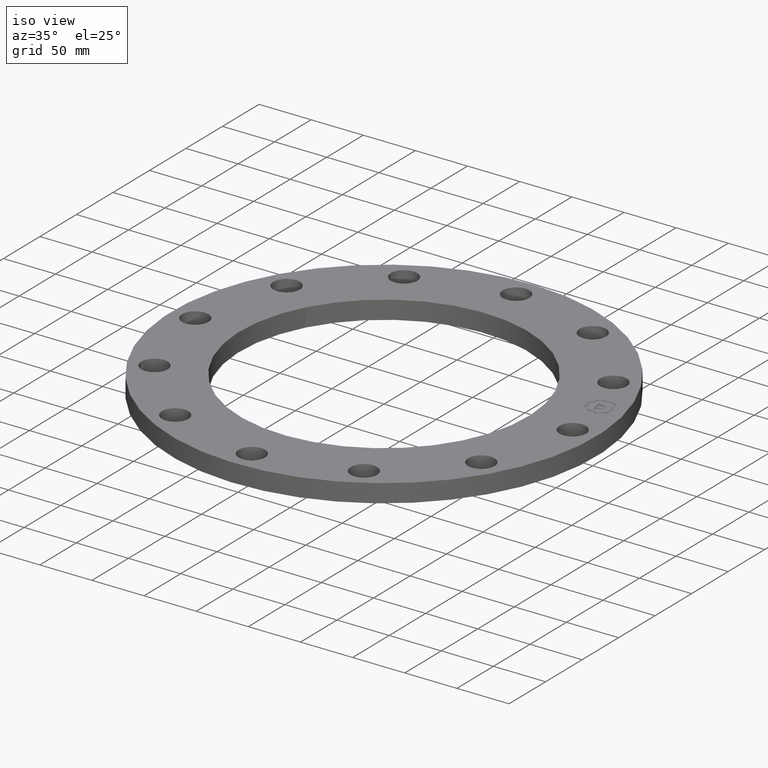
[diagram: clean part render]
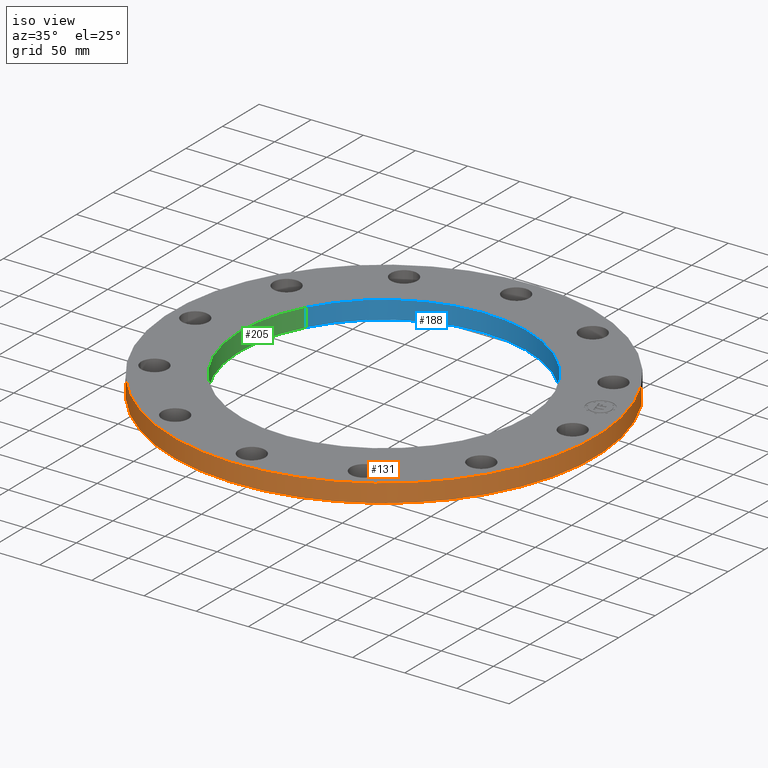
[diagram: same view with three faces highlighted in distinct colors, each labeled with its STEP entity id]
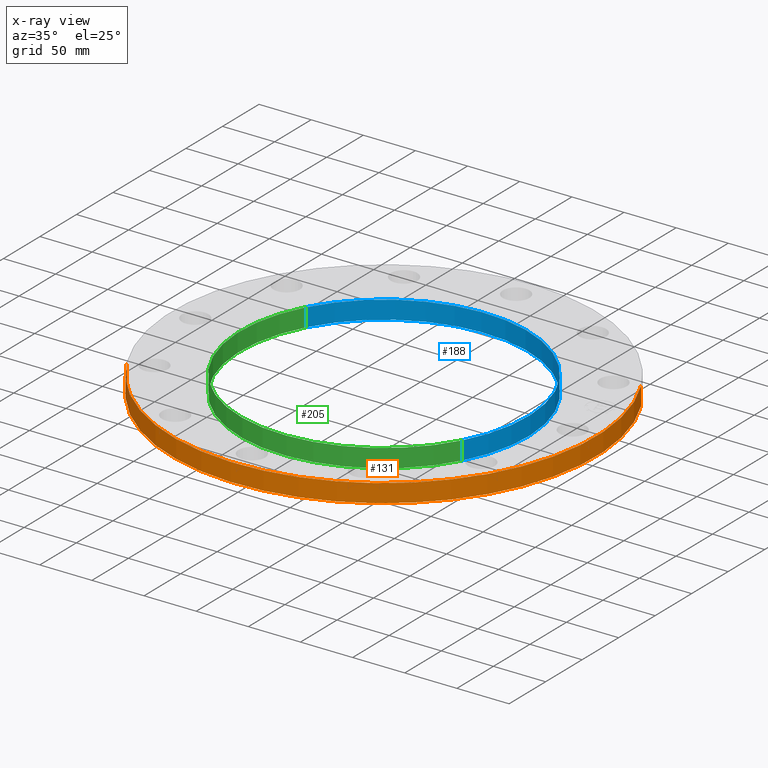
[diagram: x-ray of the same camera — body ghosted, the three highlighted faces saturated]
A machine part, iso view with three faces highlighted in distinct colors.
The next image is the same camera in x-ray (body ghosted, the three faces saturated) — at least one of them is partly hidden behind the body in this view.
Their STEP definitions:

[orange] entity #131 — the highlighted cylindrical surface (partial cylindrical patch) has radius 203.2 mm, axis along (0, 0, 1).
#95=AXIS2_PLACEMENT_3D('Cylinder Axis2P3D',#92,#93,#94) ;
#108=AXIS2_PLACEMENT_3D('Circle Axis2P3D',#106,#107,$) ;
#122=AXIS2_PLACEMENT_3D('Circle Axis2P3D',#120,#121,$) ;
#92=CARTESIAN_POINT('Axis2P3D Location',(0.,0.,0.344000000001)) ;
#97=CARTESIAN_POINT('Line Origine',(7.02066049515,3.83540430885,0.344000000001)) ;
#101=CARTESIAN_POINT('Vertex',(7.02066049515,3.83540430885,0.)) ;
#103=CARTESIAN_POINT('Vertex',(7.02066049515,3.83540430885,0.688000000003)) ;
#106=CARTESIAN_POINT('Axis2P3D Location',(0.,0.,0.688000000003)) ;
#110=CARTESIAN_POINT('Vertex',(-7.02066049515,-3.83540430885,0.688000000003)) ;
#113=CARTESIAN_POINT('Line Origine',(-7.02066049515,-3.83540430885,0.344000000001)) ;
#117=CARTESIAN_POINT('Vertex',(-7.02066049515,-3.83540430885,0.)) ;
#120=CARTESIAN_POINT('Axis2P3D Location',(0.,0.,0.)) ;
#93=DIRECTION('Axis2P3D Direction',(0.,0.,0.0393700787402)) ;
#94=DIRECTION('Axis2P3D XDirection',(0.0345504945626,0.0188750212049,0.)) ;
#98=DIRECTION('Vector Direction',(0.,0.,0.0393700787402)) ;
#107=DIRECTION('Axis2P3D Direction',(0.,0.,0.0393700787402)) ;
#114=DIRECTION('Vector Direction',(0.,0.,0.0393700787402)) ;
#121=DIRECTION('Axis2P3D Direction',(0.,0.,0.0393700787402)) ;
#99=VECTOR('Line Direction',#98,0.0393700787402) ;
#115=VECTOR('Line Direction',#114,0.0393700787402) ;
#126=ORIENTED_EDGE('',*,*,#105,.T.) ;
#127=ORIENTED_EDGE('',*,*,#112,.F.) ;
#128=ORIENTED_EDGE('',*,*,#119,.F.) ;
#129=ORIENTED_EDGE('',*,*,#124,.T.) ;
#131=ADVANCED_FACE('PartBody',(#130),#96,.T.) ;
#109=CIRCLE('generated circle',#108,8.00000000003) ;
#123=CIRCLE('generated circle',#122,8.00000000003) ;
#96=CYLINDRICAL_SURFACE('generated cylinder',#95,8.00000000003) ;
#105=EDGE_CURVE('',#102,#104,#100,.T.) ;
#112=EDGE_CURVE('',#111,#104,#109,.T.) ;
#119=EDGE_CURVE('',#118,#111,#116,.T.) ;
#124=EDGE_CURVE('',#118,#102,#123,.T.) ;
#125=EDGE_LOOP('',(#126,#127,#128,#129)) ;
#130=FACE_OUTER_BOUND('',#125,.T.) ;
#100=LINE('Line',#97,#99) ;
#116=LINE('Line',#113,#115) ;
#102=VERTEX_POINT('',#101) ;
#104=VERTEX_POINT('',#103) ;
#111=VERTEX_POINT('',#110) ;
#118=VERTEX_POINT('',#117) ;

[blue] entity #188 — the highlighted cylindrical surface (partial cylindrical patch) has radius 138.176 mm, axis along (0, -0, -1).
#152=AXIS2_PLACEMENT_3D('Cylinder Axis2P3D',#149,#150,#151) ;
#165=AXIS2_PLACEMENT_3D('Circle Axis2P3D',#163,#164,$) ;
#179=AXIS2_PLACEMENT_3D('Circle Axis2P3D',#177,#178,$) ;
#149=CARTESIAN_POINT('Axis2P3D Location',(-6.64385432059E-016,-2.09805925913E-016,0.684062992129)) ;
#154=CARTESIAN_POINT('Line Origine',(-4.7740491367,2.60807493002,0.344000000001)) ;
#158=CARTESIAN_POINT('Vertex',(-4.7740491367,2.60807493002,0.)) ;
#160=CARTESIAN_POINT('Vertex',(-4.7740491367,2.60807493002,0.688000000003)) ;
#163=CARTESIAN_POINT('Axis2P3D Location',(-6.64385432059E-016,-2.09805925913E-016,0.)) ;
#167=CARTESIAN_POINT('Vertex',(4.7740491367,-2.60807493002,0.)) ;
#170=CARTESIAN_POINT('Line Origine',(4.7740491367,-2.60807493002,0.344000000001)) ;
#174=CARTESIAN_POINT('Vertex',(4.7740491367,-2.60807493002,0.688000000003)) ;
#177=CARTESIAN_POINT('Axis2P3D Location',(-6.64385432059E-016,-2.09805925913E-016,0.688000000003)) ;
#150=DIRECTION('Axis2P3D Direction',(0.,-0.,-0.0393700787402)) ;
#151=DIRECTION('Axis2P3D XDirection',(0.0345504945626,-0.0188750212049,0.)) ;
#155=DIRECTION('Vector Direction',(0.,0.,-0.0393700787402)) ;
#164=DIRECTION('Axis2P3D Direction',(0.,-0.,-0.0393700787402)) ;
#171=DIRECTION('Vector Direction',(0.,0.,-0.0393700787402)) ;
#178=DIRECTION('Axis2P3D Direction',(0.,-0.,-0.0393700787402)) ;
#156=VECTOR('Line Direction',#155,0.0393700787402) ;
#172=VECTOR('Line Direction',#171,0.0393700787402) ;
#183=ORIENTED_EDGE('',*,*,#162,.F.) ;
#184=ORIENTED_EDGE('',*,*,#169,.F.) ;
#185=ORIENTED_EDGE('',*,*,#176,.T.) ;
#186=ORIENTED_EDGE('',*,*,#181,.T.) ;
#188=ADVANCED_FACE('PartBody',(#187),#153,.F.) ;
#166=CIRCLE('generated circle',#165,5.44000000002) ;
#180=CIRCLE('generated circle',#179,5.44000000002) ;
#153=CYLINDRICAL_SURFACE('generated cylinder',#152,5.44000000002) ;
#162=EDGE_CURVE('',#159,#161,#157,.F.) ;
#169=EDGE_CURVE('',#168,#159,#166,.F.) ;
#176=EDGE_CURVE('',#168,#175,#173,.F.) ;
#181=EDGE_CURVE('',#175,#161,#180,.F.) ;
#182=EDGE_LOOP('',(#183,#184,#185,#186)) ;
#187=FACE_OUTER_BOUND('',#182,.T.) ;
#157=LINE('Line',#154,#156) ;
#173=LINE('Line',#170,#172) ;
#159=VERTEX_POINT('',#158) ;
#161=VERTEX_POINT('',#160) ;
#168=VERTEX_POINT('',#167) ;
#175=VERTEX_POINT('',#174) ;

[green] entity #205 — the highlighted cylindrical surface (partial cylindrical patch) has radius 138.176 mm, axis along (0, -0, -1).
#152=AXIS2_PLACEMENT_3D('Cylinder Axis2P3D',#149,#150,#151) ;
#191=AXIS2_PLACEMENT_3D('Circle Axis2P3D',#189,#190,$) ;
#196=AXIS2_PLACEMENT_3D('Circle Axis2P3D',#194,#195,$) ;
#149=CARTESIAN_POINT('Axis2P3D Location',(-6.64385432059E-016,-2.09805925913E-016,0.684062992129)) ;
#154=CARTESIAN_POINT('Line Origine',(-4.7740491367,2.60807493002,0.344000000001)) ;
#158=CARTESIAN_POINT('Vertex',(-4.7740491367,2.60807493002,0.)) ;
#160=CARTESIAN_POINT('Vertex',(-4.7740491367,2.60807493002,0.688000000003)) ;
#167=CARTESIAN_POINT('Vertex',(4.7740491367,-2.60807493002,0.)) ;
#170=CARTESIAN_POINT('Line Origine',(4.7740491367,-2.60807493002,0.344000000001)) ;
#174=CARTESIAN_POINT('Vertex',(4.7740491367,-2.60807493002,0.688000000003)) ;
#189=CARTESIAN_POINT('Axis2P3D Location',(-6.64385432059E-016,-2.09805925913E-016,0.)) ;
#194=CARTESIAN_POINT('Axis2P3D Location',(-6.64385432059E-016,-2.09805925913E-016,0.688000000003)) ;
#150=DIRECTION('Axis2P3D Direction',(0.,-0.,-0.0393700787402)) ;
#151=DIRECTION('Axis2P3D XDirection',(0.0345504945626,-0.0188750212049,0.)) ;
#155=DIRECTION('Vector Direction',(0.,0.,-0.0393700787402)) ;
#171=DIRECTION('Vector Direction',(0.,0.,-0.0393700787402)) ;
#190=DIRECTION('Axis2P3D Direction',(0.,-0.,-0.0393700787402)) ;
#195=DIRECTION('Axis2P3D Direction',(0.,-0.,-0.0393700787402)) ;
#156=VECTOR('Line Direction',#155,0.0393700787402) ;
#172=VECTOR('Line Direction',#171,0.0393700787402) ;
#200=ORIENTED_EDGE('',*,*,#176,.F.) ;
#201=ORIENTED_EDGE('',*,*,#193,.F.) ;
#202=ORIENTED_EDGE('',*,*,#162,.T.) ;
#203=ORIENTED_EDGE('',*,*,#198,.T.) ;
#205=ADVANCED_FACE('PartBody',(#204),#153,.F.) ;
#192=CIRCLE('generated circle',#191,5.44000000002) ;
#197=CIRCLE('generated circle',#196,5.44000000002) ;
#153=CYLINDRICAL_SURFACE('generated cylinder',#152,5.44000000002) ;
#162=EDGE_CURVE('',#159,#161,#157,.F.) ;
#176=EDGE_CURVE('',#168,#175,#173,.F.) ;
#193=EDGE_CURVE('',#159,#168,#192,.F.) ;
#198=EDGE_CURVE('',#161,#175,#197,.F.) ;
#199=EDGE_LOOP('',(#200,#201,#202,#203)) ;
#204=FACE_OUTER_BOUND('',#199,.T.) ;
#157=LINE('Line',#154,#156) ;
#173=LINE('Line',#170,#172) ;
#159=VERTEX_POINT('',#158) ;
#161=VERTEX_POINT('',#160) ;
#168=VERTEX_POINT('',#167) ;
#175=VERTEX_POINT('',#174) ;